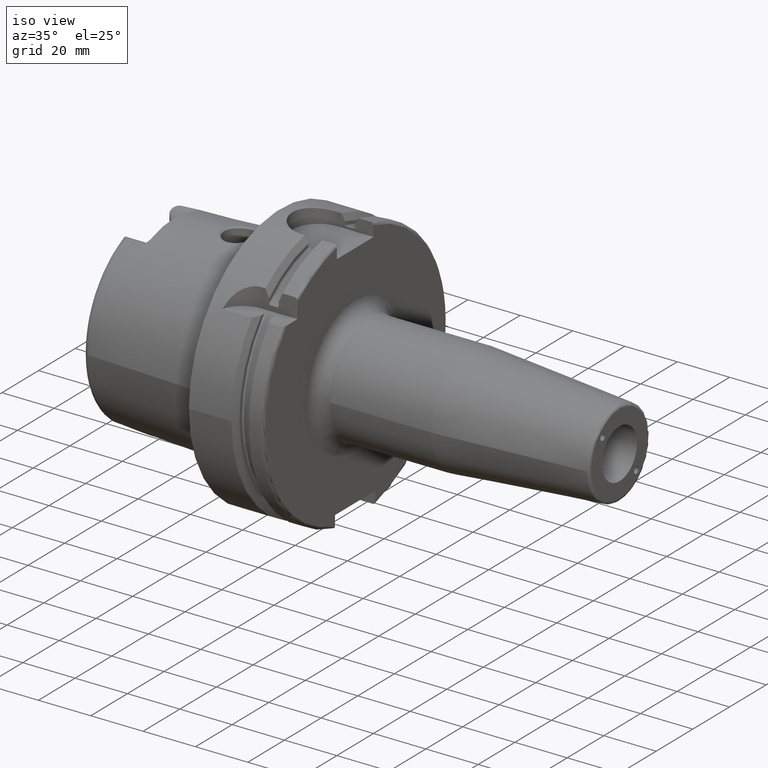
[diagram: clean part render]
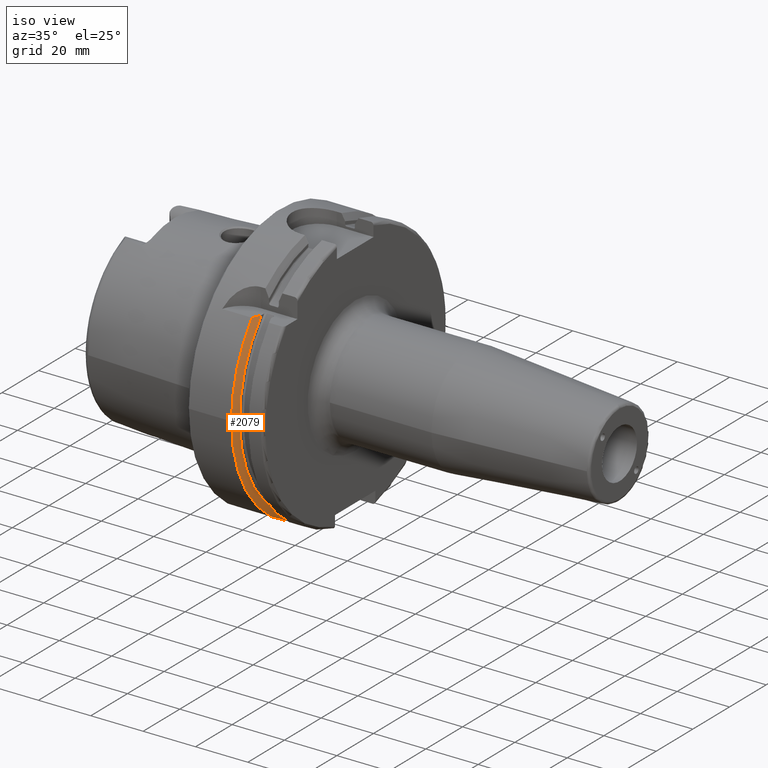
[diagram: same view with one face highlighted and labeled with its STEP entity id]
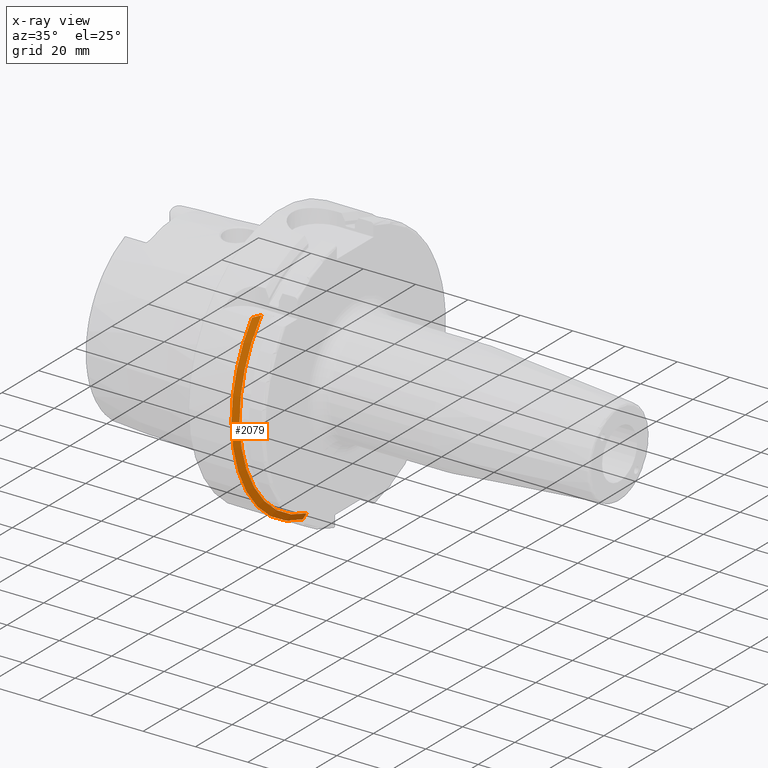
[diagram: x-ray of the same camera — body ghosted, the highlighted face saturated]
A machine part, iso view. The second image highlights one B-rep face of the part: STEP entity #2079.
The next image is the same camera in x-ray: the body ghosted, the highlighted face saturated — about 0% of this face is hidden behind the body in this view.
In plain terms, the highlighted conical surface has half-angle 60 deg.
Its self-contained STEP definition (entity closure, byte-faithful):
#19=(
BOUNDED_CURVE()
B_SPLINE_CURVE(2,(#3943,#3944,#3945),.UNSPECIFIED.,.F.,.F.)
B_SPLINE_CURVE_WITH_KNOTS((3,3),(0.,0.343884390880417),.UNSPECIFIED.)
CURVE()
GEOMETRIC_REPRESENTATION_ITEM()
RATIONAL_B_SPLINE_CURVE((1.,1.00052016257104,1.))
REPRESENTATION_ITEM('')
);
#26=(
BOUNDED_CURVE()
B_SPLINE_CURVE(2,(#4221,#4222,#4223),.UNSPECIFIED.,.F.,.F.)
B_SPLINE_CURVE_WITH_KNOTS((3,3),(0.,0.282923490805558),.UNSPECIFIED.)
CURVE()
GEOMETRIC_REPRESENTATION_ITEM()
RATIONAL_B_SPLINE_CURVE((1.,1.00031934109636,1.))
REPRESENTATION_ITEM('')
);
#317=FACE_OUTER_BOUND('',#449,.T.);
#449=EDGE_LOOP('',(#1909,#1910,#1911,#1912,#1913));
#730=CIRCLE('',#2220,50.);
#732=CIRCLE('',#2222,50.);
#793=CIRCLE('',#2350,47.5975952641917);
#917=VERTEX_POINT('',#3940);
#918=VERTEX_POINT('',#3942);
#935=VERTEX_POINT('',#4044);
#936=VERTEX_POINT('',#4046);
#964=VERTEX_POINT('',#4219);
#1159=EDGE_CURVE('',#918,#917,#19,.T.);
#1178=EDGE_CURVE('',#936,#935,#730,.T.);
#1181=EDGE_CURVE('',#917,#936,#732,.T.);
#1221=EDGE_CURVE('',#935,#964,#26,.T.);
#1311=EDGE_CURVE('',#918,#964,#793,.T.);
#1909=ORIENTED_EDGE('',*,*,#1159,.T.);
#1910=ORIENTED_EDGE('',*,*,#1181,.T.);
#1911=ORIENTED_EDGE('',*,*,#1178,.T.);
#1912=ORIENTED_EDGE('',*,*,#1221,.T.);
#1913=ORIENTED_EDGE('',*,*,#1311,.F.);
#1967=CONICAL_SURFACE('',#2349,48.7987976320958,1.0471975511966);
#2079=ADVANCED_FACE('',(#317),#1967,.T.);
#2220=AXIS2_PLACEMENT_3D('',#4047,#2647,#2648);
#2222=AXIS2_PLACEMENT_3D('',#4051,#2652,#2653);
#2349=AXIS2_PLACEMENT_3D('',#4485,#2950,#2951);
#2350=AXIS2_PLACEMENT_3D('',#4486,#2952,#2953);
#2647=DIRECTION('center_axis',(1.,0.,0.));
#2648=DIRECTION('ref_axis',(0.,0.,-1.));
#2652=DIRECTION('center_axis',(1.,0.,0.));
#2653=DIRECTION('ref_axis',(0.,0.,-1.));
#2950=DIRECTION('center_axis',(-1.,0.,0.));
#2951=DIRECTION('ref_axis',(0.,-0.951449961441176,-0.307803461438603));
#2952=DIRECTION('center_axis',(1.,0.,0.));
#2953=DIRECTION('ref_axis',(0.,0.,-1.));
#3940=CARTESIAN_POINT('',(16.7379709790786,-38.8297566307078,31.5));
#3942=CARTESIAN_POINT('',(18.125,-35.6830642593065,31.5));
#3943=CARTESIAN_POINT('Ctrl Pts',(18.125,-35.6830642593066,31.5));
#3944=CARTESIAN_POINT('Ctrl Pts',(17.4607727557241,-37.2176818849689,31.5));
#3945=CARTESIAN_POINT('Ctrl Pts',(16.7379709790786,-38.8297566307079,31.5));
#4044=CARTESIAN_POINT('',(16.7379709790786,-11.,-48.7749935930288));
#4046=CARTESIAN_POINT('',(16.7379709790786,-50.,-6.12323399573677E-15));
#4047=CARTESIAN_POINT('Origin',(16.7379709790786,0.,0.));
#4051=CARTESIAN_POINT('Origin',(16.7379709790786,0.,0.));
#4219=CARTESIAN_POINT('',(18.125,-11.,-46.3090819919139));
#4221=CARTESIAN_POINT('Ctrl Pts',(16.7379709790786,-11.,-48.7749935930288));
#4222=CARTESIAN_POINT('Ctrl Pts',(17.4494711035784,-11.,-47.5116880808765));
#4223=CARTESIAN_POINT('Ctrl Pts',(18.125,-11.,-46.3090819919139));
#4485=CARTESIAN_POINT('Origin',(17.4314854895393,0.,0.));
#4486=CARTESIAN_POINT('Origin',(18.125,0.,0.));